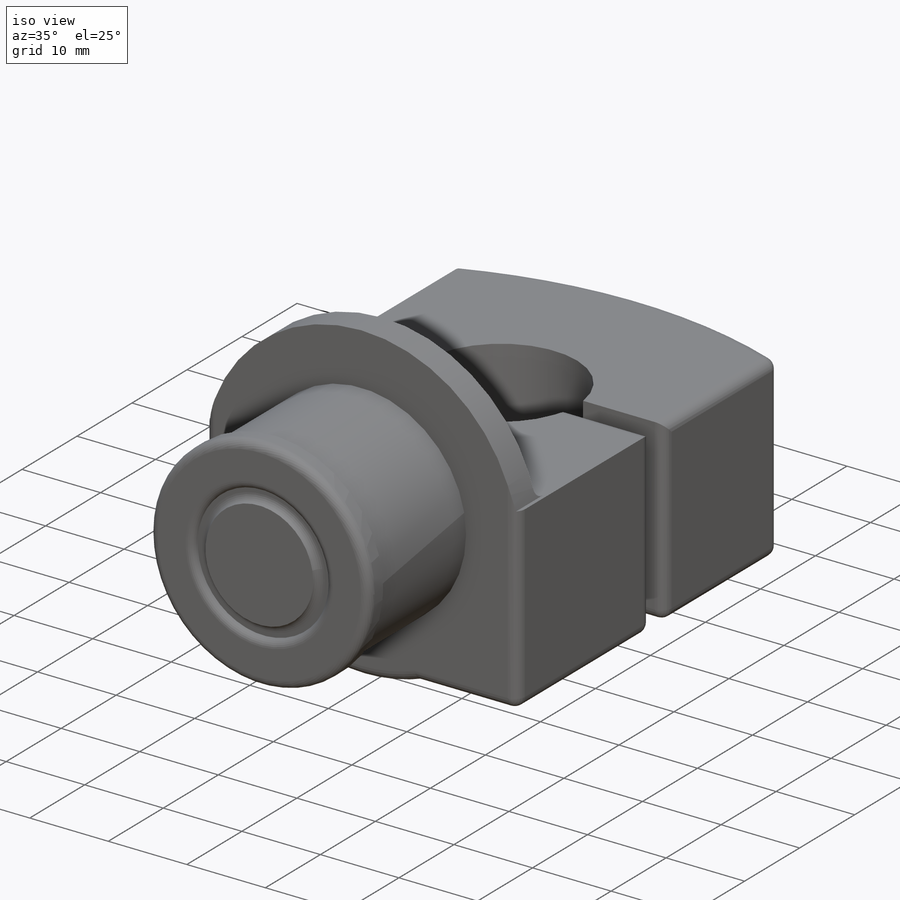
[diagram: iso view]
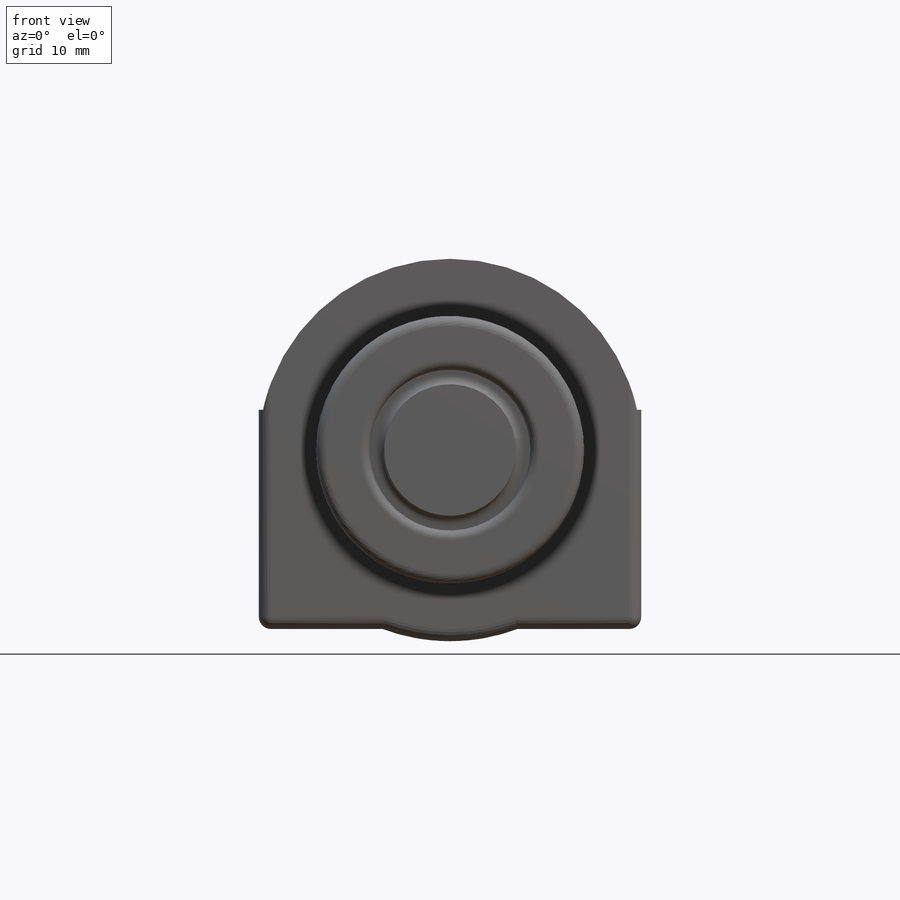
[diagram: front view]
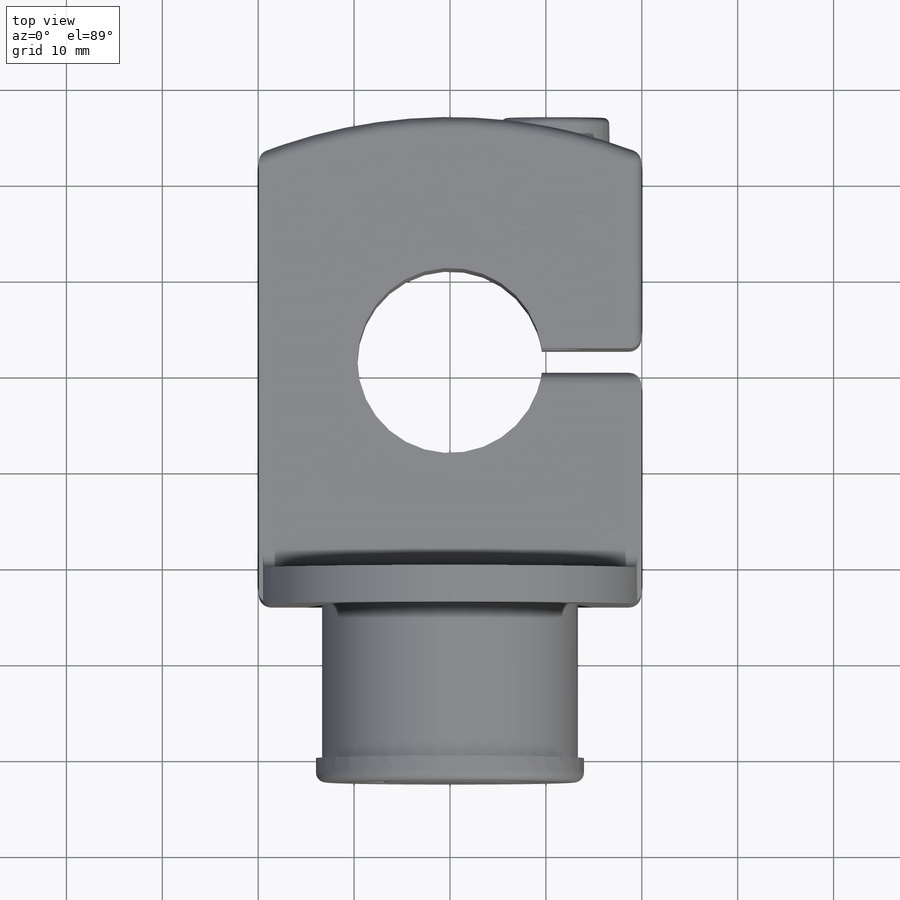
[diagram: top view]
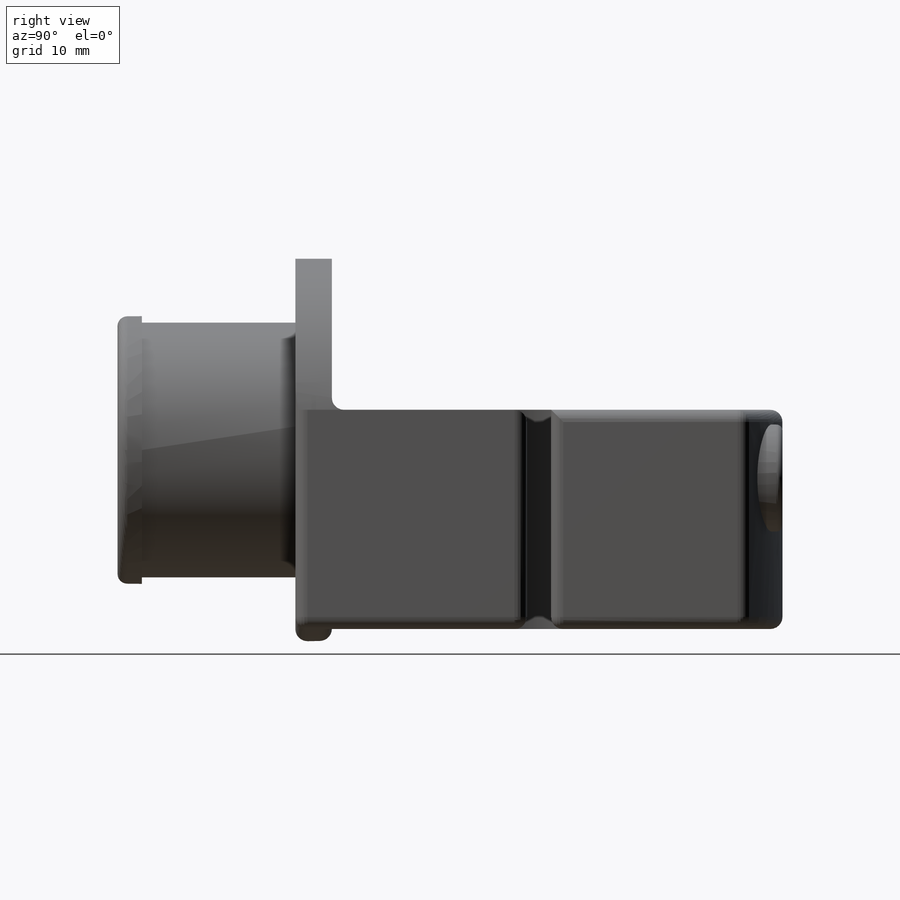
[diagram: right view]
SOLIDWORKS PART (.sldprt)
format: sldprt  version: not decoded by parser v0  size: 620,544 bytes
history: native  units: mm
features: sketch x13, extrude x8, cut_extrude x5, fillet x4, dome x4, material x1, shell x1 (+16 scaffold rows collapsed)
feature tree (52):
  scaffold x16  (default folders/planes/origin — collapsed)
  material  "Material <not specified>"
  sketch  "Sketch1"  dims[D1=13.462mm]
  extrude  "Extrude1"  Depth=2.54mm
  sketch  "Sketch2"  dims[D1=0.762mm]
  cut_extrude  "Extrude2"  Depth=0.762mm
  fillet  "Fillet1"  Radius=1.016mm
  sketch  "Sketch3"  dims[D1=0.635mm]
  extrude  "Extrude3"  Depth=16.002mm
  sketch  "Sketch4"  dims[D1=~18.199108mm]
  extrude  "Extrude4"  Depth=3.81mm
  sketch  "Sketch5"  dims[D1=19.939mm]
  extrude  "Extrude5"  Depth=43.18mm
  sketch  "Sketch7"  dims[D1=~4.348895mm]
  cut_extrude  "Extrude7"  Depth=46.99mm
  sketch  "Sketch9"  dims[D1=1.27mm]
  cut_extrude  "Extrude8"  [1 undecoded]
  fillet  "Fillet6"  Radius=1.27mm
  sketch  "Sketch6"  dims[D1=46.99mm]
  extrude  "Extrude6"  [1 undecoded]
  sketch  "Sketch10"  dims[D1=8.89mm]
  cut_extrude  "Extrude9"  [1 undecoded]
  sketch  "3DSketch2"
  extrude  "Extrude15"  Depth=2.794mm
  fillet  "Fillet9"  Radius=0.635mm
  fillet  "Fillet11"  Radius=1.27mm
  shell  "Shell1"  Thickness=2.54mm
  sketch  "Sketch15"
  extrude  "Extrude18"  [1 undecoded]
  sketch  "Sketch16"  dims[D1=~13.265452mm]
  extrude  "Extrude19"  [1 undecoded]
  sketch  "Sketch13"  dims[D1=~2.069077mm]
  cut_extrude  "Extrude16"  [1 undecoded]
  dome  "Dome1"
  dome  "Binding Head Screw_AI<14>@Tripod1"
  dome  "Binding Head Screw_AI<12>@Tripod1"
  dome  "Binding Head Screw_AI<11>@Tripod1"
decode coverage: 23 of 35 modeling features carry decoded parameters
note: ~ marks probable driven/reference dimensions
note: 6 parameter values undecoded
summary: no parameter record found for 6 features
note: suppression state not decoded; provenance and decode notes live in map.json
